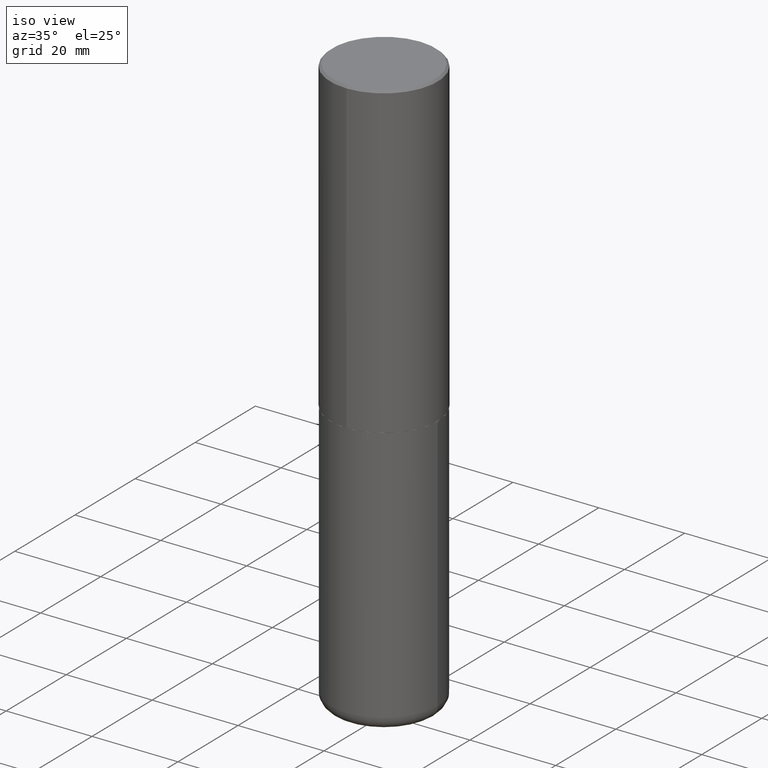
[diagram: clean part render]
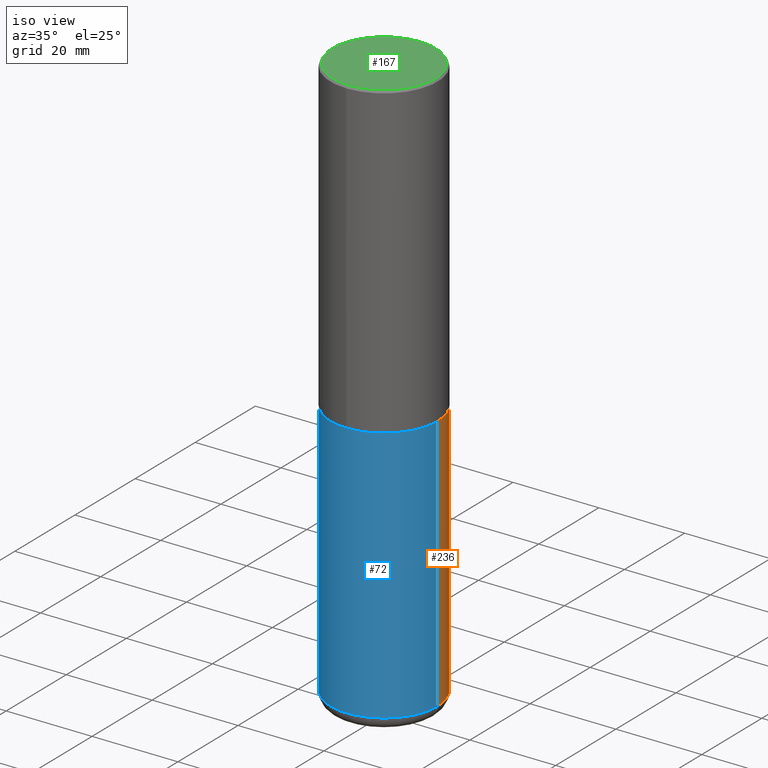
[diagram: same view with three faces highlighted in distinct colors, each labeled with its STEP entity id]
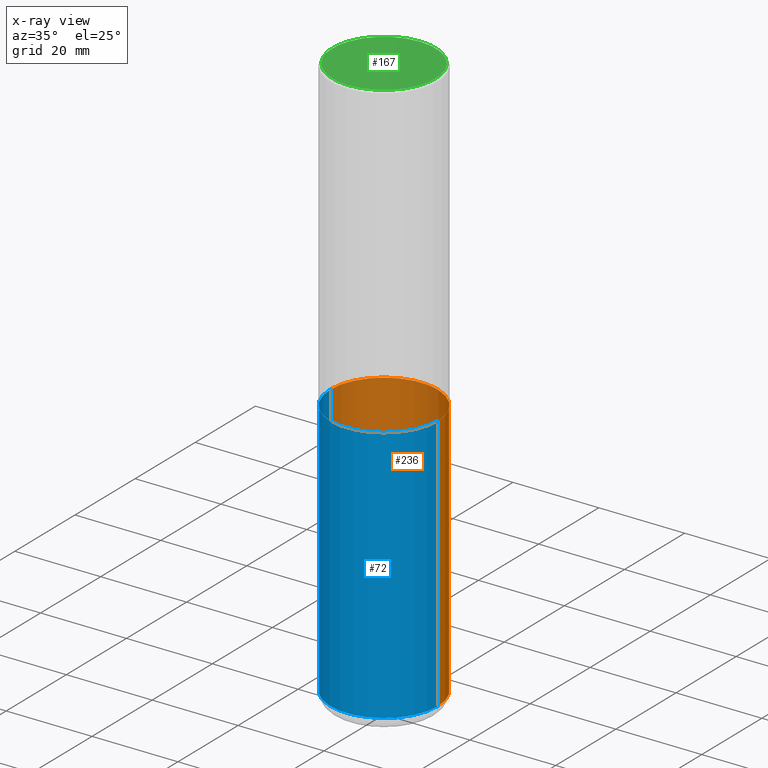
[diagram: x-ray of the same camera — body ghosted, the three highlighted faces saturated]
A machine part, iso view with three faces highlighted in distinct colors.
The next image is the same camera in x-ray (body ghosted, the three faces saturated) — at least one of them is partly hidden behind the body in this view.
Their STEP definitions:

[orange] entity #236 — the highlighted cylindrical surface (partial cylindrical patch) has radius 12.5006 mm, axis along (-0, 0, 1).
#1 = CIRCLE ( 'NONE', #272, 0.4921500000000000319 ) ;
#21 = EDGE_CURVE ( 'NONE', #271, #215, #310, .T. ) ;
#22 = DIRECTION ( 'NONE',  ( 1.000000000000000000, -6.982962677686265133E-15, 0.000000000000000000 ) ) ;
#25 = CYLINDRICAL_SURFACE ( 'NONE', #196, 0.4921499999999999764 ) ;
#37 = CIRCLE ( 'NONE', #254, 0.4921499999999999764 ) ;
#58 = CARTESIAN_POINT ( 'NONE',  ( -0.4921499999999999764, -1.464794329579061349E-14, -5.196900000000000297 ) ) ;
#103 = ORIENTED_EDGE ( 'NONE', *, *, #411, .T. ) ;
#118 = DIRECTION ( 'NONE',  ( 1.000000000000000000, -6.982962677686265922E-15, 4.876176775795935793E-29 ) ) ;
#122 = CARTESIAN_POINT ( 'NONE',  ( -0.4921499999999999764, -1.052415468648297289E-14, -2.834700000000000220 ) ) ;
#132 = DIRECTION ( 'NONE',  ( -2.445468806185136877E-29, 3.491481338843145188E-15, 1.000000000000000000 ) ) ;
#161 = CARTESIAN_POINT ( 'NONE',  ( -0.4921499999999999764, 3.496936074043332897E-15, -2.420853904668951509E-29 ) ) ;
#186 = CARTESIAN_POINT ( 'NONE',  ( 0.4921499999999999764, -2.158154445165724138E-14, -5.196900000000000297 ) ) ;
#191 = VERTEX_POINT ( 'NONE', #122 ) ;
#196 = AXIS2_PLACEMENT_3D ( 'NONE', #224, #286, #118 ) ;
#215 = VERTEX_POINT ( 'NONE', #312 ) ;
#224 = CARTESIAN_POINT ( 'NONE',  ( 0.000000000000000000, 0.000000000000000000, 0.000000000000000000 ) ) ;
#225 = VECTOR ( 'NONE', #250, 39.37007874015748143 ) ;
#236 = ADVANCED_FACE ( 'NONE', ( #346 ), #25, .T. ) ;
#250 = DIRECTION ( 'NONE',  ( -2.445468806185136877E-29, 3.491481338843145188E-15, 1.000000000000000000 ) ) ;
#251 = DIRECTION ( 'NONE',  ( -2.445468806185136597E-29, 3.491481338843145583E-15, 1.000000000000000000 ) ) ;
#254 = AXIS2_PLACEMENT_3D ( 'NONE', #381, #251, #380 ) ;
#262 = EDGE_CURVE ( 'NONE', #271, #270, #1, .T. ) ;
#270 = VERTEX_POINT ( 'NONE', #58 ) ;
#271 = VERTEX_POINT ( 'NONE', #186 ) ;
#272 = AXIS2_PLACEMENT_3D ( 'NONE', #287, #313, #22 ) ;
#286 = DIRECTION ( 'NONE',  ( -2.445468806185136597E-29, 3.491481338843145583E-15, 1.000000000000000000 ) ) ;
#287 = CARTESIAN_POINT ( 'NONE',  ( 1.270885683886353718E-28, -1.814487936983394718E-14, -5.196900000000000297 ) ) ;
#298 = ORIENTED_EDGE ( 'NONE', *, *, #21, .F. ) ;
#304 = CARTESIAN_POINT ( 'NONE',  ( 0.4921499999999999764, -3.436665081823295777E-15, 2.399810400207969603E-29 ) ) ;
#310 = LINE ( 'NONE', #304, #225 ) ;
#312 = CARTESIAN_POINT ( 'NONE',  ( 0.4921499999999999764, -1.333396723304196175E-14, -2.834700000000000220 ) ) ;
#313 = DIRECTION ( 'NONE',  ( -2.445468806185136597E-29, 3.491481338843145583E-15, 1.000000000000000000 ) ) ;
#321 = EDGE_CURVE ( 'NONE', #215, #191, #37, .T. ) ;
#346 = FACE_OUTER_BOUND ( 'NONE', #354, .T. ) ;
#354 = EDGE_LOOP ( 'NONE', ( #360, #103, #387, #298 ) ) ;
#360 = ORIENTED_EDGE ( 'NONE', *, *, #262, .T. ) ;
#376 = VECTOR ( 'NONE', #132, 39.37007874015748143 ) ;
#380 = DIRECTION ( 'NONE',  ( 1.000000000000000000, -6.982962677686265922E-15, 0.000000000000000000 ) ) ;
#381 = CARTESIAN_POINT ( 'NONE',  ( 6.932170424893007423E-29, -9.897302151218665974E-15, -2.834700000000000220 ) ) ;
#387 = ORIENTED_EDGE ( 'NONE', *, *, #321, .F. ) ;
#411 = EDGE_CURVE ( 'NONE', #270, #191, #418, .T. ) ;
#418 = LINE ( 'NONE', #161, #376 ) ;

[blue] entity #72 — the highlighted cylindrical surface (partial cylindrical patch) has radius 12.5006 mm, axis along (-0, 0, 1).
#21 = EDGE_CURVE ( 'NONE', #271, #215, #310, .T. ) ;
#23 = AXIS2_PLACEMENT_3D ( 'NONE', #223, #184, #120 ) ;
#33 = ORIENTED_EDGE ( 'NONE', *, *, #21, .T. ) ;
#35 = EDGE_LOOP ( 'NONE', ( #263, #195, #33, #417 ) ) ;
#58 = CARTESIAN_POINT ( 'NONE',  ( -0.4921499999999999764, -1.464794329579061349E-14, -5.196900000000000297 ) ) ;
#72 = ADVANCED_FACE ( 'NONE', ( #398 ), #273, .T. ) ;
#80 = DIRECTION ( 'NONE',  ( -2.445468806185136597E-29, 3.491481338843145583E-15, 1.000000000000000000 ) ) ;
#97 = EDGE_CURVE ( 'NONE', #270, #271, #131, .T. ) ;
#111 = CARTESIAN_POINT ( 'NONE',  ( 0.000000000000000000, 0.000000000000000000, 0.000000000000000000 ) ) ;
#120 = DIRECTION ( 'NONE',  ( 1.000000000000000000, -6.982962677686265922E-15, 0.000000000000000000 ) ) ;
#122 = CARTESIAN_POINT ( 'NONE',  ( -0.4921499999999999764, -1.052415468648297289E-14, -2.834700000000000220 ) ) ;
#131 = CIRCLE ( 'NONE', #171, 0.4921500000000000319 ) ;
#132 = DIRECTION ( 'NONE',  ( -2.445468806185136877E-29, 3.491481338843145188E-15, 1.000000000000000000 ) ) ;
#161 = CARTESIAN_POINT ( 'NONE',  ( -0.4921499999999999764, 3.496936074043332897E-15, -2.420853904668951509E-29 ) ) ;
#171 = AXIS2_PLACEMENT_3D ( 'NONE', #211, #80, #335 ) ;
#184 = DIRECTION ( 'NONE',  ( -2.445468806185136597E-29, 3.491481338843145583E-15, 1.000000000000000000 ) ) ;
#185 = EDGE_CURVE ( 'NONE', #191, #215, #214, .T. ) ;
#186 = CARTESIAN_POINT ( 'NONE',  ( 0.4921499999999999764, -2.158154445165724138E-14, -5.196900000000000297 ) ) ;
#191 = VERTEX_POINT ( 'NONE', #122 ) ;
#195 = ORIENTED_EDGE ( 'NONE', *, *, #97, .T. ) ;
#211 = CARTESIAN_POINT ( 'NONE',  ( 1.270885683886353718E-28, -1.814487936983394718E-14, -5.196900000000000297 ) ) ;
#214 = CIRCLE ( 'NONE', #23, 0.4921499999999999764 ) ;
#215 = VERTEX_POINT ( 'NONE', #312 ) ;
#223 = CARTESIAN_POINT ( 'NONE',  ( 6.932170424893007423E-29, -9.897302151218665974E-15, -2.834700000000000220 ) ) ;
#225 = VECTOR ( 'NONE', #250, 39.37007874015748143 ) ;
#250 = DIRECTION ( 'NONE',  ( -2.445468806185136877E-29, 3.491481338843145188E-15, 1.000000000000000000 ) ) ;
#263 = ORIENTED_EDGE ( 'NONE', *, *, #411, .F. ) ;
#270 = VERTEX_POINT ( 'NONE', #58 ) ;
#271 = VERTEX_POINT ( 'NONE', #186 ) ;
#273 = CYLINDRICAL_SURFACE ( 'NONE', #285, 0.4921499999999999764 ) ;
#281 = DIRECTION ( 'NONE',  ( 1.000000000000000000, -6.982962677686265922E-15, 4.876176775795935793E-29 ) ) ;
#285 = AXIS2_PLACEMENT_3D ( 'NONE', #111, #401, #281 ) ;
#304 = CARTESIAN_POINT ( 'NONE',  ( 0.4921499999999999764, -3.436665081823295777E-15, 2.399810400207969603E-29 ) ) ;
#310 = LINE ( 'NONE', #304, #225 ) ;
#312 = CARTESIAN_POINT ( 'NONE',  ( 0.4921499999999999764, -1.333396723304196175E-14, -2.834700000000000220 ) ) ;
#335 = DIRECTION ( 'NONE',  ( 1.000000000000000000, -6.982962677686265133E-15, 0.000000000000000000 ) ) ;
#376 = VECTOR ( 'NONE', #132, 39.37007874015748143 ) ;
#398 = FACE_OUTER_BOUND ( 'NONE', #35, .T. ) ;
#401 = DIRECTION ( 'NONE',  ( -2.445468806185136597E-29, 3.491481338843145583E-15, 1.000000000000000000 ) ) ;
#411 = EDGE_CURVE ( 'NONE', #270, #191, #418, .T. ) ;
#417 = ORIENTED_EDGE ( 'NONE', *, *, #185, .F. ) ;
#418 = LINE ( 'NONE', #161, #376 ) ;

[green] entity #167 — the highlighted planar face has unit normal (0, -0, -1).
#2 = EDGE_LOOP ( 'NONE', ( #293, #268 ) ) ;
#12 = EDGE_CURVE ( 'NONE', #106, #104, #30, .T. ) ;
#30 = CIRCLE ( 'NONE', #246, 0.4721499999999997921 ) ;
#44 = CARTESIAN_POINT ( 'NONE',  ( -3.307789109625542536E-15, -0.4721499999999997921, 1.930548793390495776E-15 ) ) ;
#57 = CARTESIAN_POINT ( 'NONE',  ( 3.297005828269569180E-15, 0.4721499999999997921, -1.507723015688746393E-15 ) ) ;
#60 = FACE_OUTER_BOUND ( 'NONE', #2, .T. ) ;
#70 = DIRECTION ( 'NONE',  ( -2.445229172240879899E-29, 3.491824508290438219E-15, 1.000000000000000000 ) ) ;
#93 = AXIS2_PLACEMENT_3D ( 'NONE', #227, #70, #199 ) ;
#104 = VERTEX_POINT ( 'NONE', #44 ) ;
#106 = VERTEX_POINT ( 'NONE', #343 ) ;
#143 = DIRECTION ( 'NONE',  ( -2.445229172240879899E-29, 3.491824508290438219E-15, 1.000000000000000000 ) ) ;
#147 = DIRECTION ( 'NONE',  ( 2.445229172240879339E-29, -3.491824508290438613E-15, -1.000000000000000000 ) ) ;
#149 = AXIS2_PLACEMENT_3D ( 'NONE', #57, #147, #283 ) ;
#167 = ADVANCED_FACE ( 'NONE', ( #60 ), #377, .F. ) ;
#199 = DIRECTION ( 'NONE',  ( -6.982962677686265922E-15, -1.000000000000000000, 3.491824508290437824E-15 ) ) ;
#227 = CARTESIAN_POINT ( 'NONE',  ( -6.892706176078369160E-45, 9.842889422106222579E-31, 2.818838518011663701E-16 ) ) ;
#246 = AXIS2_PLACEMENT_3D ( 'NONE', #301, #143, #400 ) ;
#268 = ORIENTED_EDGE ( 'NONE', *, *, #352, .T. ) ;
#283 = DIRECTION ( 'NONE',  ( 6.982962677686265922E-15, 1.000000000000000000, -3.491824508290438613E-15 ) ) ;
#293 = ORIENTED_EDGE ( 'NONE', *, *, #12, .T. ) ;
#301 = CARTESIAN_POINT ( 'NONE',  ( -6.892706176078369160E-45, 9.842889422106222579E-31, 2.818838518011663701E-16 ) ) ;
#337 = CIRCLE ( 'NONE', #93, 0.4721499999999997921 ) ;
#343 = CARTESIAN_POINT ( 'NONE',  ( 3.366835455046432873E-15, 0.4721499999999997921, -1.366781089788163134E-15 ) ) ;
#352 = EDGE_CURVE ( 'NONE', #104, #106, #337, .T. ) ;
#377 = PLANE ( 'NONE',  #149 ) ;
#400 = DIRECTION ( 'NONE',  ( -6.982962677686265922E-15, -1.000000000000000000, 3.491824508290437824E-15 ) ) ;